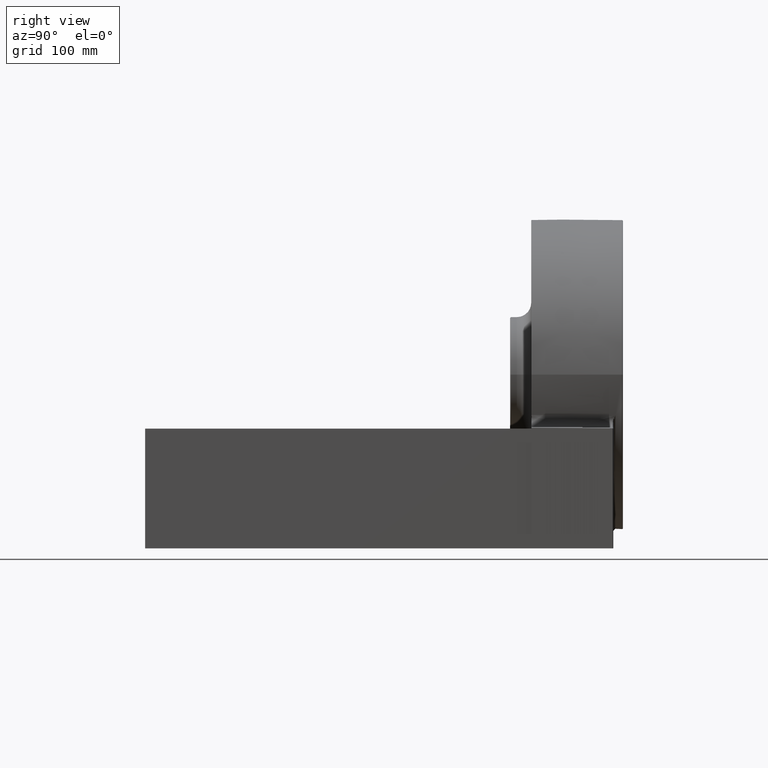
[diagram: clean part render]
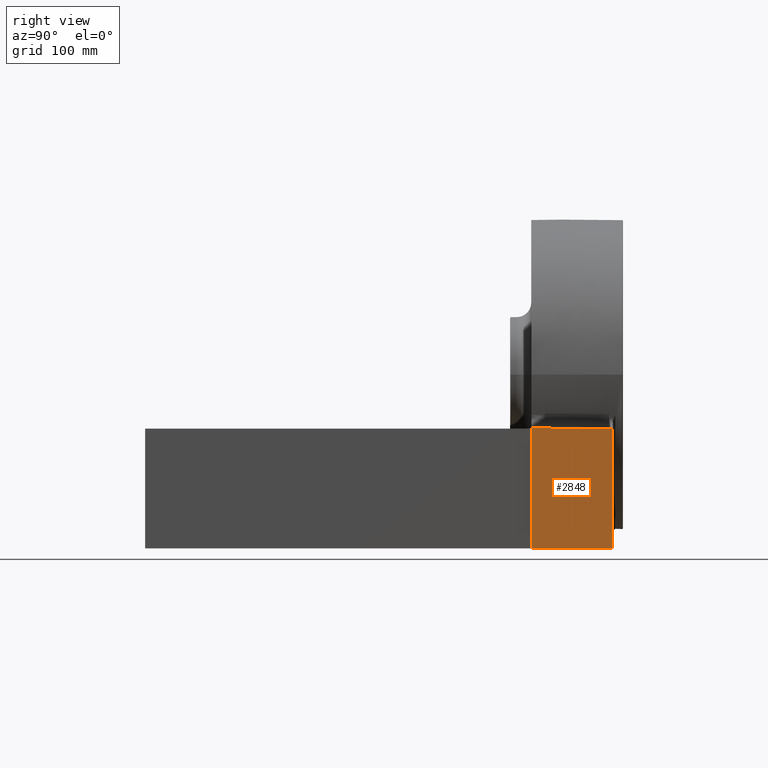
[diagram: same view with one face highlighted and labeled with its STEP entity id]
A machine part, right view. The second image highlights one B-rep face of the part: STEP entity #2848.
In plain terms, the highlighted planar face has unit normal (1, 0.0087, -0).
Its self-contained STEP definition (entity closure, byte-faithful):
#47 = DIRECTION ( 'NONE',  ( 0.008726203243944359589, -0.9999238504775704861, 0.008726203243944236423 ) ) ;
#62 = DIRECTION ( 'NONE',  ( 0.9999619230641713097, 0.008726535498374075189, -0.0000000000000000000 ) ) ;
#141 = CARTESIAN_POINT ( 'NONE',  ( 192.0000000000000000, 399.9999000000000251, -124.0000000000000000 ) ) ;
#154 = CARTESIAN_POINT ( 'NONE',  ( 191.2668669502547516, 484.0086265354984221, 1.000000000000000888 ) ) ;
#500 = CARTESIAN_POINT ( 'NONE',  ( 192.0000000000000568, 399.9999000000000251, 55.99999999999999289 ) ) ;
#554 = EDGE_CURVE ( 'NONE', #3121, #1724, #3614, .T. ) ;
#845 = VERTEX_POINT ( 'NONE', #3603 ) ;
#1008 = LINE ( 'NONE', #154, #4344 ) ;
#1239 = VECTOR ( 'NONE', #2227, 1000.000000000000000 ) ;
#1315 = VERTEX_POINT ( 'NONE', #141 ) ;
#1355 = CARTESIAN_POINT ( 'NONE',  ( 191.2582162377855468, 484.9999000000000251, -124.0000000000000000 ) ) ;
#1724 = VERTEX_POINT ( 'NONE', #1912 ) ;
#1794 = EDGE_CURVE ( 'NONE', #1315, #1724, #2689, .T. ) ;
#1912 = CARTESIAN_POINT ( 'NONE',  ( 192.0000000000000568, 399.9999000000000251, 0.7418218391503292874 ) ) ;
#2158 = ORIENTED_EDGE ( 'NONE', *, *, #4383, .F. ) ;
#2221 = EDGE_LOOP ( 'NONE', ( #2158, #3768, #3945, #3760 ) ) ;
#2227 = DIRECTION ( 'NONE',  ( 0.008726535498374075189, -0.9999619230641713097, 0.0000000000000000000 ) ) ;
#2254 = CARTESIAN_POINT ( 'NONE',  ( 191.2487740536273293, 486.0818671369609092, -0.009404107222360513774 ) ) ;
#2689 = LINE ( 'NONE', #500, #3490 ) ;
#2748 = LINE ( 'NONE', #3559, #1239 ) ;
#2762 = DIRECTION ( 'NONE',  ( 0.0000000000000000000, 0.0000000000000000000, 1.000000000000000000 ) ) ;
#2848 = ADVANCED_FACE ( 'NONE', ( #3544 ), #3661, .T. ) ;
#3121 = VERTEX_POINT ( 'NONE', #4758 ) ;
#3143 = DIRECTION ( 'NONE',  ( 0.0000000000000000000, 0.0000000000000000000, 1.000000000000000000 ) ) ;
#3490 = VECTOR ( 'NONE', #3143, 1000.000000000000000 ) ;
#3544 = FACE_OUTER_BOUND ( 'NONE', #2221, .T. ) ;
#3559 = CARTESIAN_POINT ( 'NONE',  ( 191.2327051764810619, 487.9231780782450301, -124.0000000000000000 ) ) ;
#3603 = CARTESIAN_POINT ( 'NONE',  ( 191.2668669502547516, 484.0086265354984221, -124.0000000000000000 ) ) ;
#3614 = LINE ( 'NONE', #2254, #3854 ) ;
#3633 = DIRECTION ( 'NONE',  ( -0.008726535498374075189, 0.9999619230641713097, 0.0000000000000000000 ) ) ;
#3661 = PLANE ( 'NONE',  #3733 ) ;
#3733 = AXIS2_PLACEMENT_3D ( 'NONE', #1355, #62, #3633 ) ;
#3760 = ORIENTED_EDGE ( 'NONE', *, *, #1794, .F. ) ;
#3768 = ORIENTED_EDGE ( 'NONE', *, *, #5518, .T. ) ;
#3854 = VECTOR ( 'NONE', #47, 1000.000000000000114 ) ;
#3945 = ORIENTED_EDGE ( 'NONE', *, *, #554, .T. ) ;
#4344 = VECTOR ( 'NONE', #2762, 1000.000000000000000 ) ;
#4383 = EDGE_CURVE ( 'NONE', #845, #1315, #2748, .T. ) ;
#4758 = CARTESIAN_POINT ( 'NONE',  ( 191.2668669502547516, 484.0086265354984221, 0.008688789405027208534 ) ) ;
#5518 = EDGE_CURVE ( 'NONE', #845, #3121, #1008, .T. ) ;